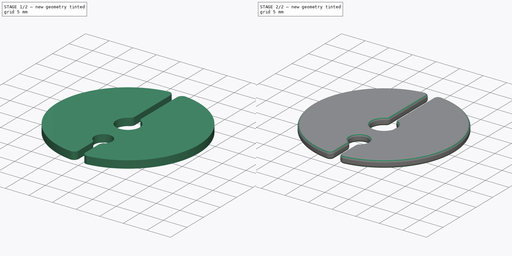
[diagram: build sequence overview — one tinted view per stage of 2, left to right]
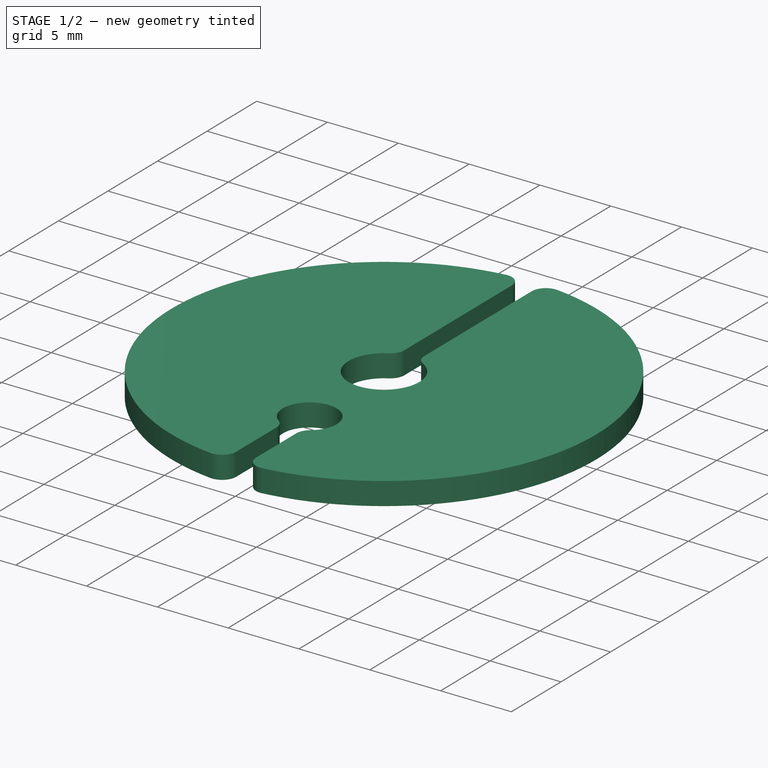
[diagram: stage 1 of 2 — iso view after this stage's code; geometry added in this stage tinted green]
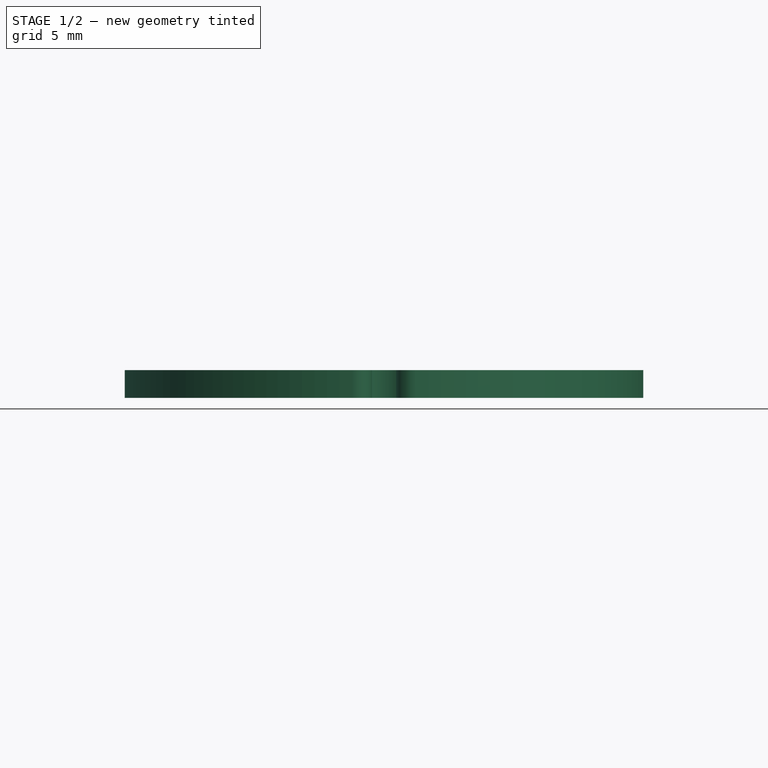
[diagram: stage 1 of 2 — front view after this stage's code; geometry added in this stage tinted green]
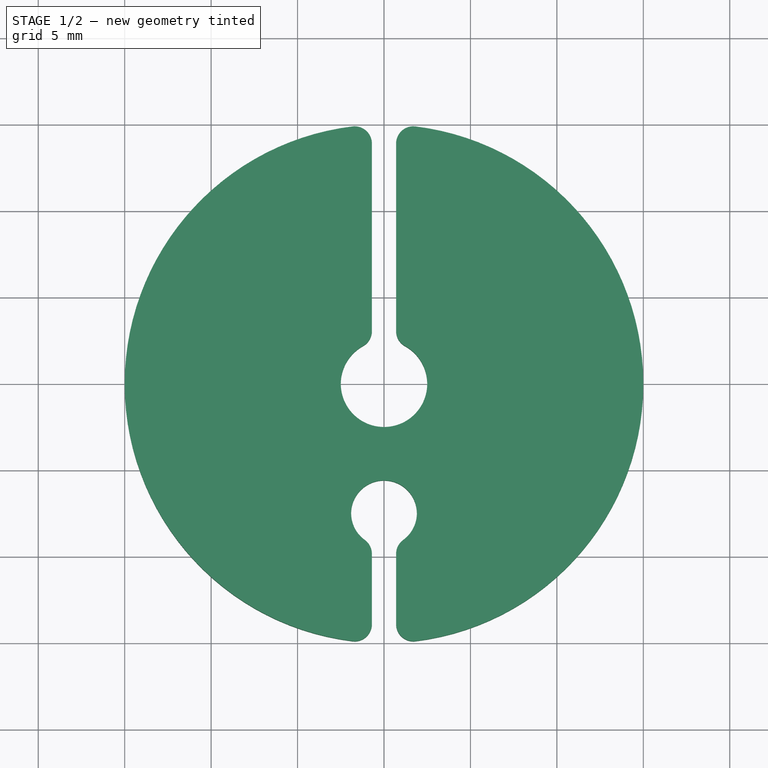
[diagram: stage 1 of 2 — top view after this stage's code; geometry added in this stage tinted green]
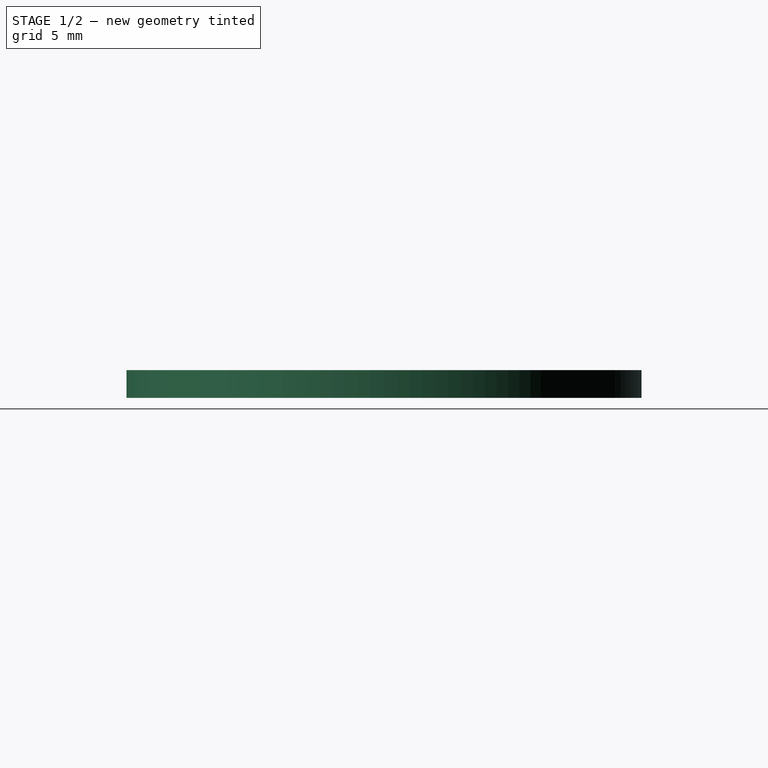
[diagram: stage 1 of 2 — right view after this stage's code; geometry added in this stage tinted green]
FCSTD DOCUMENT  (FreeCAD 0.19R24276 (Git))
Label: BalloonDisc
License: All rights reserved
LicenseURL: http://en.wikipedia.org/wiki/All_rights_reserved
objects: PartDesign::Fillet×2, Sketcher::SketchObject×1, PartDesign::Pad×1, PartDesign::Body×1, App::Part×1
note: 8 computed .brp shape members not serialized (recipe doc carries the construction recipe); baked Part::Feature solids carry a one-line shape summary decoded from their .brp

FEATURE [Sketcher::SketchObject] Sketch
  FullyConstrained = true
  MapMode = 5
  Support = -> [XY_Plane]
  sketch-geometry (14):
    g0: ArcOfCircle CenterX=0 CenterY=0 CenterZ=0 NormalX=0 NormalY=0 NormalZ=1 AngleXU=0 Radius=15 StartAngle=1.61748 EndAngle=4.66571
    g1: ArcOfCircle CenterX=0 CenterY=0 CenterZ=0 NormalX=0 NormalY=0 NormalZ=1 AngleXU=0 Radius=15 StartAngle=4.75907 EndAngle=7.8073
    g2: LineSegment StartX=0.7 StartY=14.9837 StartZ=0 EndX=0.7 EndY=2.4 EndZ=0
    g3: LineSegment StartX=0.7 StartY=-9.25818 StartZ=0 EndX=0.7 EndY=-14.9837 EndZ=0
    g4: LineSegment StartX=-0.7 StartY=14.9837 StartZ=0 EndX=-0.7 EndY=2.4 EndZ=0
    g5: LineSegment StartX=-0.7 StartY=-9.25818 StartZ=0 EndX=-0.7 EndY=-14.9837 EndZ=0
    g6: LineSegment StartX=-0.7 StartY=14.9837 StartZ=0 EndX=0.7 EndY=14.9837 EndZ=0
    g7: LineSegment StartX=-0.7 StartY=-14.9837 StartZ=0 EndX=0.7 EndY=-14.9837 EndZ=0
    g8: ArcOfCircle CenterX=0 CenterY=0 CenterZ=0 NormalX=0 NormalY=0 NormalZ=1 AngleXU=0 Radius=2.5 StartAngle=1.85459 EndAngle=7.57019
    g9: LineSegment StartX=-0.7 StartY=-9.25818 StartZ=0 EndX=0.7 EndY=-9.25818 EndZ=0
    g10: LineSegment StartX=-0.7 StartY=2.4 StartZ=0 EndX=0.7 EndY=2.4 EndZ=0
    g11: LineSegment StartX=0 StartY=0 StartZ=0 EndX=0 EndY=-7.49183 EndZ=0
    g12: LineSegment StartX=0 StartY=-7.49183 StartZ=0 EndX=0 EndY=-14.9837 EndZ=0
    g13: ArcOfCircle CenterX=0 CenterY=-7.49183 CenterZ=0 NormalX=0 NormalY=0 NormalZ=1 AngleXU=0 Radius=1.9 StartAngle=5.0897 EndAngle=10.6183
  constraints (38):
    c: Coincident(g1,g0)
    c: Coincident(g2,g1)
    c: Vertical(g2)
    c: Coincident(g3,g1)
    c: Vertical(g3)
    c: Coincident(g4,g0)
    c: Vertical(g4)
    c: Vertical(g5)
    c: Coincident(g5,g0)
    c: Equal(g1,g0)
    c: Coincident(g6,g0)
    c: Coincident(g6,g1)
    c: Coincident(g7,g0)
    c: Coincident(g7,g1)
    c: Coincident(g8,g0)
    c: Coincident(g8,g4)
    c: Coincident(g8,g2)
    c: Coincident(g9,g5)
    c: Coincident(g9,g3)
    c: Horizontal(g9)
    c: Coincident(g10,g4)
    c: Coincident(g10,g2)
    c: Horizontal(g10)
    c: Radius(g8) = 2.5
    c: DistanceX(g6,g6) = 1.4
    c: Radius(g1) = 15
    c: Coincident(g11,g0)
    c: PointOnObject(g3,g2)
    c: Vertical(g11)
    c: Coincident(g12,g11)
    c: PointOnObject(g12,g7)
    c: Vertical(g12)
    c: Equal(g12,g11)
    c: Coincident(g13,g5)
    c: Coincident(g13,g3)
    c: Coincident(g13,g11)
    c: Coincident(g0,g-1)
    c: Radius(g13) = 1.9
FEATURE [PartDesign::Pad] Pad
  Direction = (1,1,1)
  Length = 1.6
  Length2 = 100
  Profile = -> Sketch
  Type = 0
FEATURE [PartDesign::Fillet] Fillet
  Base = -> Pad [Edge5,Edge14,Edge11,Edge8,Edge2,Edge20,Edge1,Edge17]
  BaseFeature = -> Pad
  Radius = 1
  SupportTransform = false
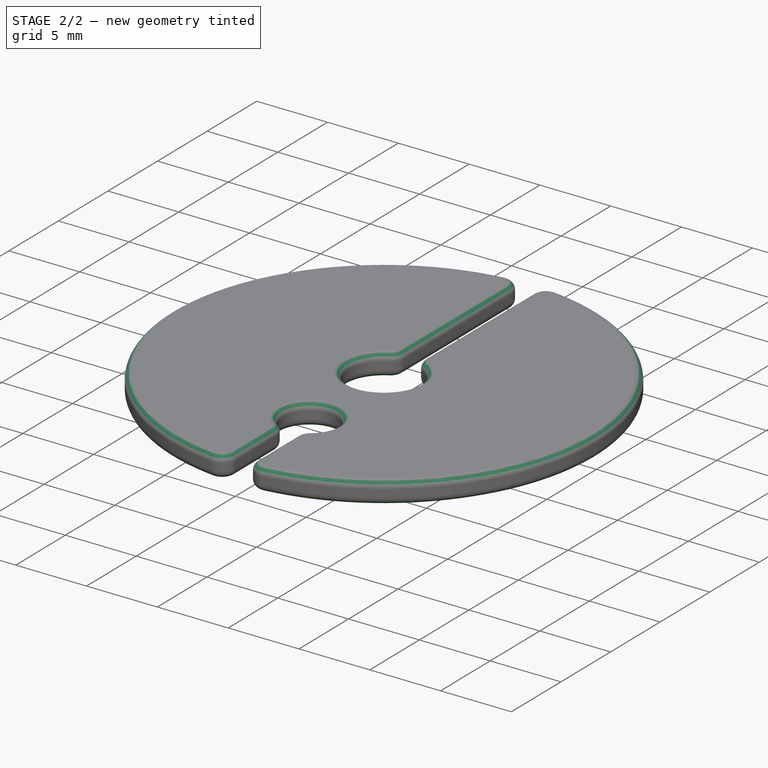
[diagram: stage 2 of 2 — iso view after this stage's code; geometry added in this stage tinted green]
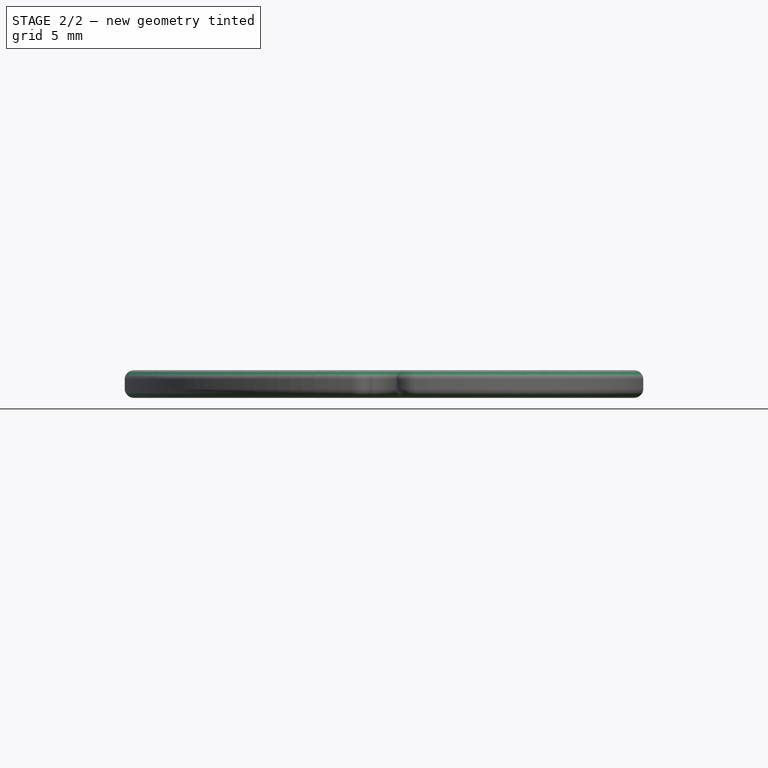
[diagram: stage 2 of 2 — front view after this stage's code; geometry added in this stage tinted green]
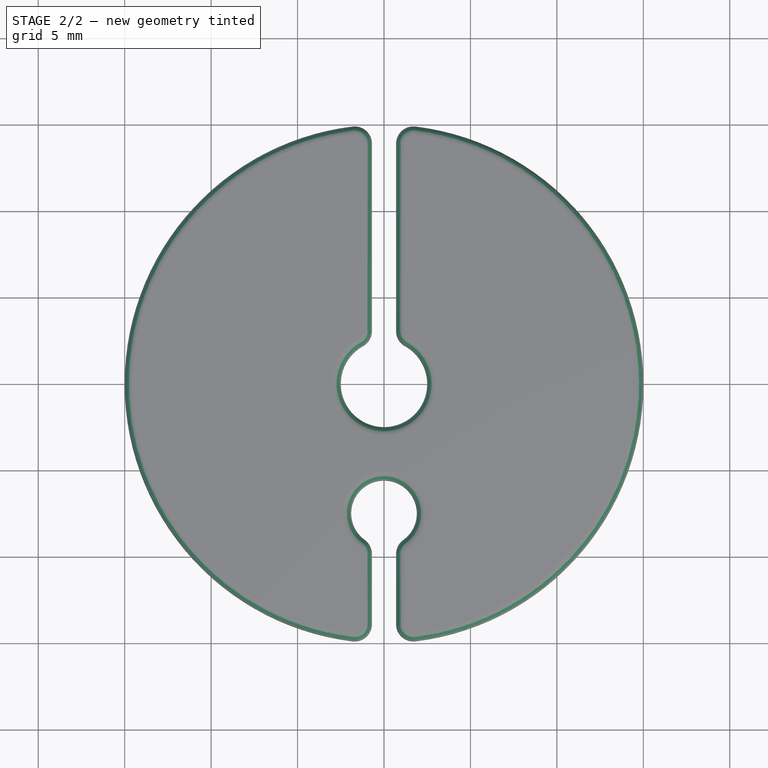
[diagram: stage 2 of 2 — top view after this stage's code; geometry added in this stage tinted green]
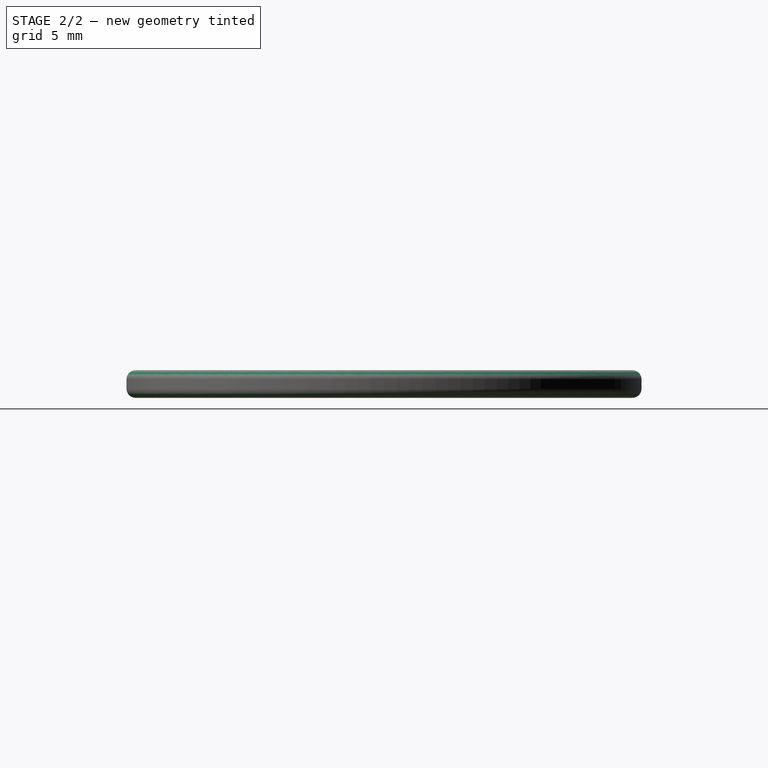
[diagram: stage 2 of 2 — right view after this stage's code; geometry added in this stage tinted green]
FEATURE [PartDesign::Fillet] Fillet001
  Base = -> Fillet [Face5,Face2]
  BaseFeature = -> Fillet
  Radius = 0.533333
  SupportTransform = false
  expr: Radius = <<Pad>>.Length / 3
FEATURE [PartDesign::Body] Body
  Group = -> [Sketch,Pad,Fillet,Fillet001]
  Origin = -> Origin001
  Tip = -> Fillet001
FEATURE [App::Part] Part
  Group = -> [Body]
  Origin = -> Origin
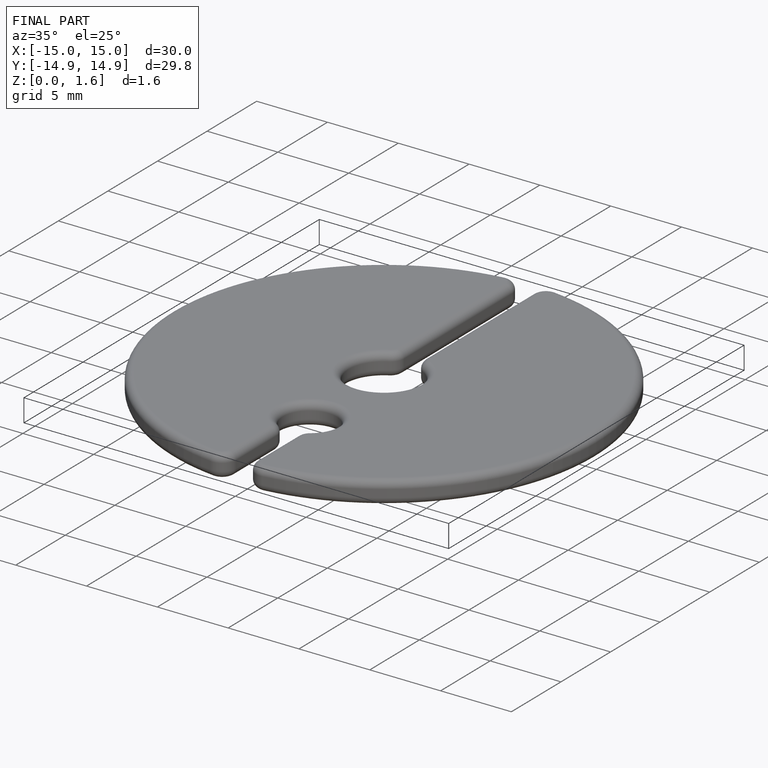
[diagram: finished part — iso view with bounding-box wireframe]
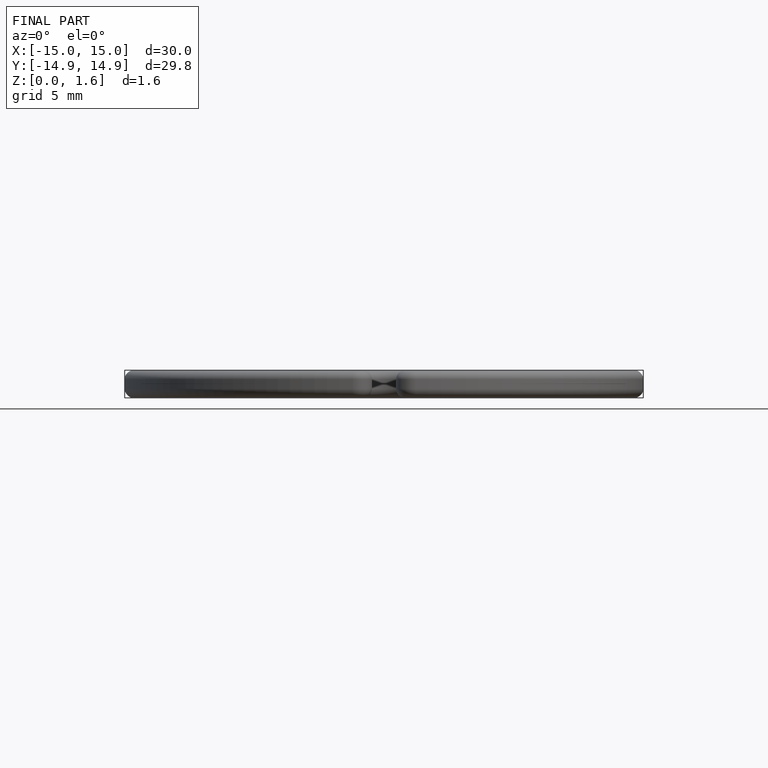
[diagram: finished part — front view with bounding-box wireframe]
